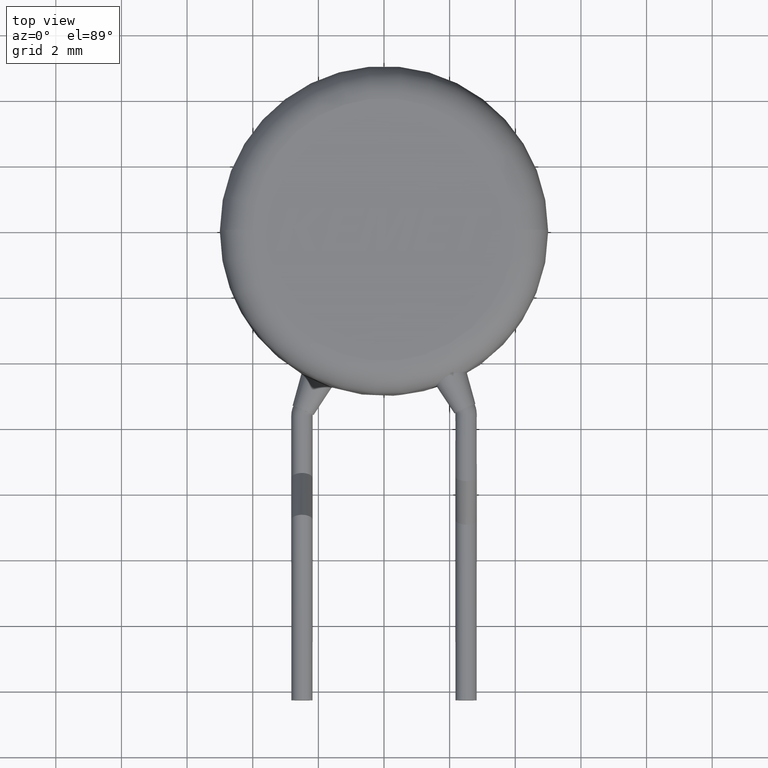
[diagram: clean part render]
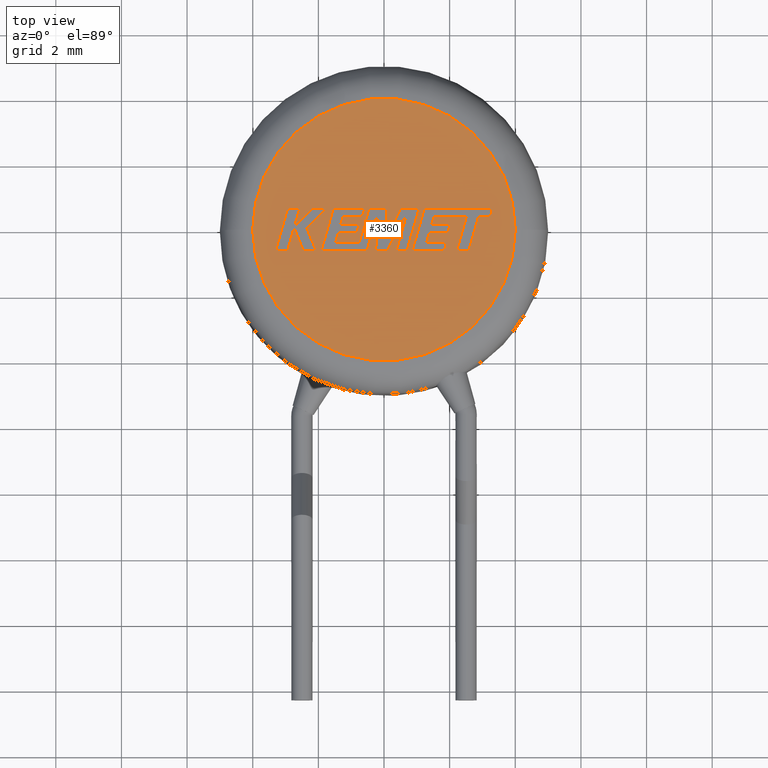
[diagram: same view with one face highlighted and labeled with its STEP entity id]
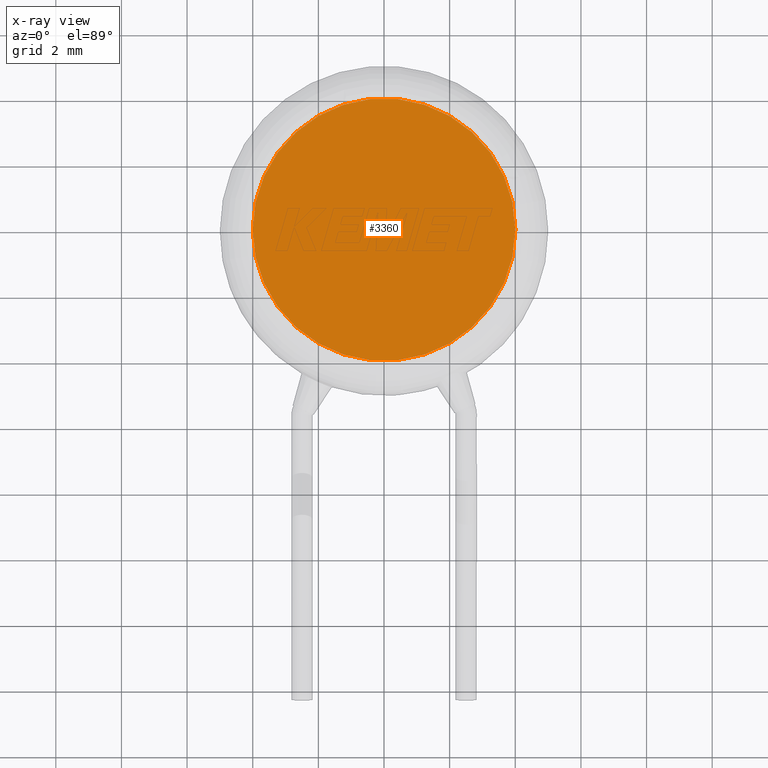
[diagram: x-ray of the same camera — body ghosted, the highlighted face saturated]
A machine part, top view. The second image highlights one B-rep face of the part: STEP entity #3360.
The next image is the same camera in x-ray: the body ghosted, the highlighted face saturated — about 0% of this face is hidden behind the body in this view.
In plain terms, the highlighted planar face has unit normal (0, 0, 1).
Its self-contained STEP definition (entity closure, byte-faithful):
#25 = EDGE_LOOP ( 'NONE', ( #3133, #1144 ) ) ;
#350 = DIRECTION ( 'NONE',  ( 1.000000000000000000, 0.0000000000000000000, -0.0000000000000000000 ) ) ;
#379 = VERTEX_POINT ( 'NONE', #3554 ) ;
#629 = CARTESIAN_POINT ( 'NONE',  ( 0.0000000000000000000, 0.0000000000000000000, 5.000000000000000000 ) ) ;
#951 = CARTESIAN_POINT ( 'NONE',  ( 0.0000000000000000000, 0.0000000000000000000, 5.000000000000000000 ) ) ;
#1144 = ORIENTED_EDGE ( 'NONE', *, *, #3019, .T. ) ;
#1655 = AXIS2_PLACEMENT_3D ( 'NONE', #951, #3243, #2953 ) ;
#1771 = CARTESIAN_POINT ( 'NONE',  ( -4.000000000000000000, 5.510910596163088600E-016, 5.000000000000000000 ) ) ;
#1953 = PLANE ( 'NONE',  #3792 ) ;
#2072 = CIRCLE ( 'NONE', #1655, 4.000000000000000000 ) ;
#2084 = VERTEX_POINT ( 'NONE', #1771 ) ;
#2233 = FACE_OUTER_BOUND ( 'NONE', #25, .T. ) ;
#2255 = DIRECTION ( 'NONE',  ( 0.0000000000000000000, 0.0000000000000000000, 1.000000000000000000 ) ) ;
#2953 = DIRECTION ( 'NONE',  ( 1.000000000000000000, 0.0000000000000000000, 0.0000000000000000000 ) ) ;
#3019 = EDGE_CURVE ( 'NONE', #2084, #379, #3095, .T. ) ;
#3095 = CIRCLE ( 'NONE', #3965, 4.000000000000000000 ) ;
#3133 = ORIENTED_EDGE ( 'NONE', *, *, #3340, .T. ) ;
#3243 = DIRECTION ( 'NONE',  ( 0.0000000000000000000, 0.0000000000000000000, 1.000000000000000000 ) ) ;
#3259 = DIRECTION ( 'NONE',  ( 1.000000000000000000, 0.0000000000000000000, 0.0000000000000000000 ) ) ;
#3340 = EDGE_CURVE ( 'NONE', #379, #2084, #2072, .T. ) ;
#3360 = ADVANCED_FACE ( 'NONE', ( #2233 ), #1953, .T. ) ;
#3554 = CARTESIAN_POINT ( 'NONE',  ( 4.000000000000000000, 0.0000000000000000000, 5.000000000000000000 ) ) ;
#3792 = AXIS2_PLACEMENT_3D ( 'NONE', #3914, #2255, #350 ) ;
#3893 = DIRECTION ( 'NONE',  ( 0.0000000000000000000, 0.0000000000000000000, 1.000000000000000000 ) ) ;
#3914 = CARTESIAN_POINT ( 'NONE',  ( 0.0000000000000000000, 0.0000000000000000000, 5.000000000000000000 ) ) ;
#3965 = AXIS2_PLACEMENT_3D ( 'NONE', #629, #3893, #3259 ) ;